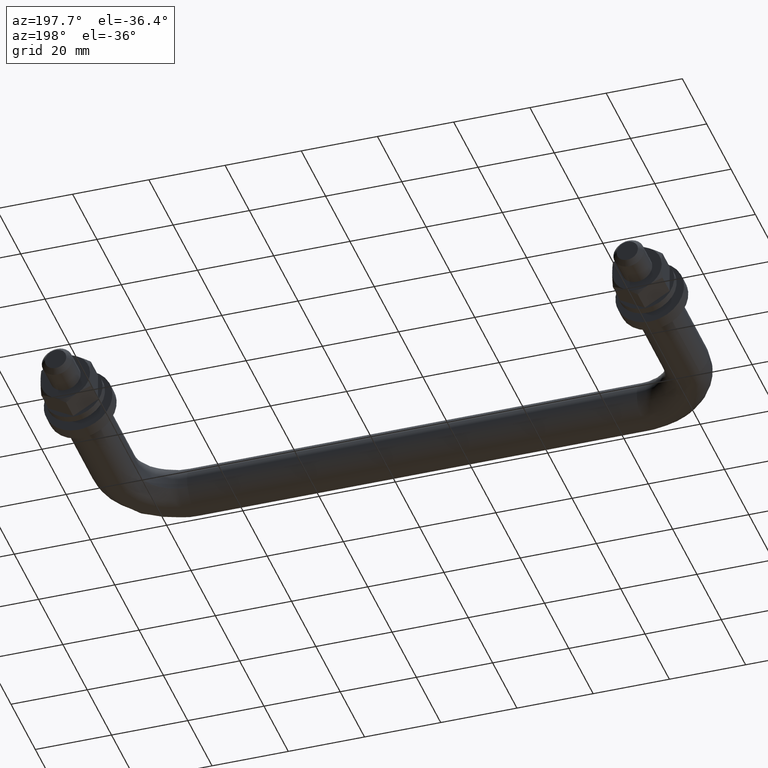
[diagram: clean part render]
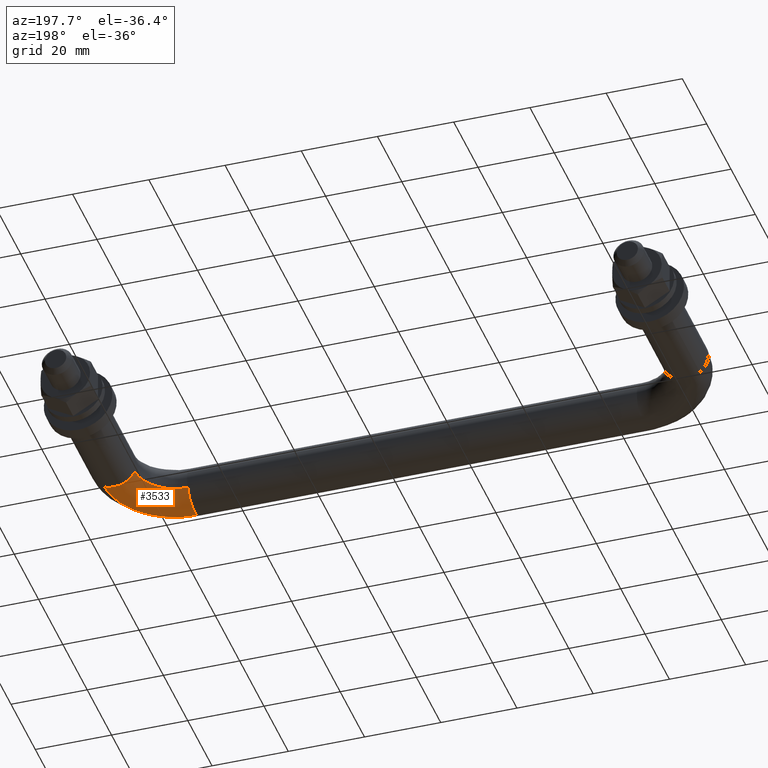
[diagram: same view with one face highlighted and labeled with its STEP entity id]
A machine part, auxiliary view. The second image highlights one B-rep face of the part: STEP entity #3533.
In plain terms, the highlighted face is a freeform B-spline surface patch.
Its self-contained STEP definition (entity closure, byte-faithful):
#2884=CARTESIAN_POINT('',(152.417438616497800,-28.000000000778101,-5.491447034750065));
#2885=VERTEX_POINT('',#2884);
#2899=CARTESIAN_POINT('',(144.508552964583200,-28.000000000472362,-2.417438614983335));
#2900=VERTEX_POINT('',#2899);
#2901=CARTESIAN_POINT('',(144.508552964583200,-28.000000000472358,-2.417438614983334));
#2902=CARTESIAN_POINT('',(146.085664093914150,-27.999999999999996,-6.0));
#2903=CARTESIAN_POINT('',(150.0,-28.0,-6.0));
#2904=CARTESIAN_POINT('',(151.262211074867390,-28.0,-6.0));
#2905=CARTESIAN_POINT('',(152.417438616497690,-28.000000000778101,-5.491447034750065));
#2913=(BOUNDED_CURVE()B_SPLINE_CURVE(2,(#2901,#2902,#2903,#2904,#2905),.UNSPECIFIED.,.F.,.U.)B_SPLINE_CURVE_WITH_KNOTS((3,2,3),(0.068414990178445,0.250000000000000,0.318414990264596),.UNSPECIFIED.)CURVE()GEOMETRIC_REPRESENTATION_ITEM()RATIONAL_B_SPLINE_CURVE((0.883563120475829,0.787259927940370,1.0,0.919846853145246,0.883563120384450))REPRESENTATION_ITEM(''));
#2914=EDGE_CURVE('',#2900,#2885,#2913,.T.);
#3053=CARTESIAN_POINT('',(133.999999999551110,-38.508552964590407,-2.417438614999606));
#3054=VERTEX_POINT('',#3053);
#3068=CARTESIAN_POINT('',(133.999999999887710,-46.417438614712417,-5.491447035536014));
#3069=VERTEX_POINT('',#3068);
#3070=CARTESIAN_POINT('',(133.999999999551050,-38.508552964590407,-2.417438614999606));
#3071=CARTESIAN_POINT('',(134.000000000000060,-40.085664093939506,-6.0));
#3072=CARTESIAN_POINT('',(134.0,-44.0,-6.0));
#3073=CARTESIAN_POINT('',(133.999999999999970,-45.262211072830290,-6.000000000000001));
#3074=CARTESIAN_POINT('',(133.999999999887760,-46.417438614712424,-5.491447035536014));
#3082=(BOUNDED_CURVE()B_SPLINE_CURVE(2,(#3070,#3071,#3072,#3073,#3074),.UNSPECIFIED.,.F.,.U.)B_SPLINE_CURVE_WITH_KNOTS((3,2,3),(0.068414990179371,0.250000000000000,0.318414990163034),.UNSPECIFIED.)CURVE()GEOMETRIC_REPRESENTATION_ITEM()RATIONAL_B_SPLINE_CURVE((0.883563120474848,0.787259927941454,1.0,0.919846853264233,0.883563120492176))REPRESENTATION_ITEM(''));
#3083=EDGE_CURVE('',#3054,#3069,#3082,.T.);
#3456=CARTESIAN_POINT('',(133.999999999551080,-38.508552964590415,-2.417438614999605));
#3457=CARTESIAN_POINT('',(135.126750548388340,-38.508552964370757,-2.417438614281976));
#3458=CARTESIAN_POINT('',(136.227887943418690,-38.269673836813510,-2.417438614281976));
#3459=CARTESIAN_POINT('',(144.508552963512730,-36.473278541801839,-2.417438614281976));
#3460=CARTESIAN_POINT('',(144.508552964583260,-28.000000000472365,-2.417438614983335));
#3468=(BOUNDED_CURVE()B_SPLINE_CURVE(2,(#3456,#3457,#3458,#3459,#3460),.UNSPECIFIED.,.F.,.U.)B_SPLINE_CURVE_WITH_KNOTS((3,2,3),(-2.295019327089030,-2.0,-0.255468157725302),.UNSPECIFIED.)CURVE()GEOMETRIC_REPRESENTATION_ITEM()RATIONAL_B_SPLINE_CURVE((0.928943411322204,0.958324109002081,1.0,0.753558793525760,0.937042118994425))REPRESENTATION_ITEM(''));
#3469=EDGE_CURVE('',#3054,#2900,#3468,.T.);
#3476=CARTESIAN_POINT('',(133.999999999887790,-46.417438614712424,-5.491447035536014));
#3477=CARTESIAN_POINT('',(135.974758954549400,-46.417438614306050,-5.491447035725503));
#3478=CARTESIAN_POINT('',(137.904627932780810,-45.998775675511730,-5.491447035725503));
#3479=CARTESIAN_POINT('',(152.417438613027120,-42.850387863648074,-5.491447035725503));
#3480=CARTESIAN_POINT('',(152.417438616497780,-28.000000000778101,-5.491447034750065));
#3488=(BOUNDED_CURVE()B_SPLINE_CURVE(2,(#3476,#3477,#3478,#3479,#3480),.UNSPECIFIED.,.F.,.U.)B_SPLINE_CURVE_WITH_KNOTS((3,2,3),(-2.295019326991359,-2.0,-0.255468157718031),.UNSPECIFIED.)CURVE()GEOMETRIC_REPRESENTATION_ITEM()RATIONAL_B_SPLINE_CURVE((0.928943411341658,0.958324109015879,1.0,0.753558793524733,0.937042118995954))REPRESENTATION_ITEM(''));
#3489=EDGE_CURVE('',#3069,#2885,#3488,.T.);
#3494=CARTESIAN_POINT('',(133.190883827649740,-38.460090003771043,-2.378330856761430));
#3495=CARTESIAN_POINT('',(134.722735859085620,-38.578582889762991,-2.378330856761430));
#3496=CARTESIAN_POINT('',(136.224238034767350,-38.252849215317831,-2.378330856761429));
#3497=CARTESIAN_POINT('',(145.144469896326970,-36.317707230026308,-2.378330856761430));
#3498=CARTESIAN_POINT('',(144.461967776733270,-27.215537058909362,-2.378330856761430));
#3499=CARTESIAN_POINT('',(133.190220940430860,-38.468659675479870,-2.397855852383587));
#3500=CARTESIAN_POINT('',(134.723327977226260,-38.587249639521090,-2.397855852383587));
#3501=CARTESIAN_POINT('',(136.226060293443310,-38.261249100196814,-2.397855852383587));
#3502=CARTESIAN_POINT('',(145.153600262160010,-36.324521704883196,-2.397855852383588));
#3503=CARTESIAN_POINT('',(144.470538986851210,-27.214894369422904,-2.397855852383588));
#3504=CARTESIAN_POINT('',(133.003117635203610,-40.887493310945729,-7.908885650007481));
#3505=CARTESIAN_POINT('',(134.890456348481510,-41.033484050515405,-7.908885650007480));
#3506=CARTESIAN_POINT('',(136.740402117446560,-40.632159535234152,-7.908885650007479));
#3507=CARTESIAN_POINT('',(147.730692679620460,-38.247942058885108,-7.908885650007481));
#3508=CARTESIAN_POINT('',(146.889806846152540,-27.033491977378233,-7.908885650007479));
#3509=CARTESIAN_POINT('',(132.578109309058790,-46.381914873320362,-5.482912168456755));
#3510=CARTESIAN_POINT('',(135.270091273862590,-46.590146938495003,-5.482912168456753));
#3511=CARTESIAN_POINT('',(137.908738280297310,-46.017722736326007,-5.482912168456753));
#3512=CARTESIAN_POINT('',(153.584601745177200,-42.617023963314224,-5.482912168456754));
#3513=CARTESIAN_POINT('',(152.385214755322350,-26.621433372064295,-5.482912168456756));
#3514=CARTESIAN_POINT('',(132.576618445372160,-46.401188457112546,-5.474402227484175));
#3515=CARTESIAN_POINT('',(135.271422974654370,-46.609638855261970,-5.474402227484175));
#3516=CARTESIAN_POINT('',(137.912836623439860,-46.036614461768963,-5.474402227484173));
#3517=CARTESIAN_POINT('',(153.605136355709960,-42.632350029074551,-5.474402227484175));
#3518=CARTESIAN_POINT('',(152.404491799067100,-26.619987934001962,-5.474402227484176));
#3526=(BOUNDED_SURFACE()B_SPLINE_SURFACE(2,2,((#3494,#3499,#3504,#3509,#3514),(#3495,#3500,#3505,#3510,#3515),(#3496,#3501,#3506,#3511,#3516),(#3497,#3502,#3507,#3512,#3517),(#3498,#3503,#3508,#3513,#3518)),.UNSPECIFIED.,.F.,.F.,.U.)B_SPLINE_SURFACE_WITH_KNOTS((3,2,3),(3,1,1,3),(0.0,5.936266058941145,33.552553725789451),(0.0,0.050208780299094,9.991334277253408,10.041042409730251),.UNSPECIFIED.)GEOMETRIC_REPRESENTATION_ITEM()RATIONAL_B_SPLINE_SURFACE(((0.912810808853102,0.911464479831563,0.643550716118729,0.911451055153874,0.912783959497724),(0.946725351907199,0.945329001421056,0.667461178459471,0.945315077963329,0.946697504991746),(1.002958580752050,1.001479290376025,0.707106781186548,1.001464539898104,1.002929079796208),(0.741354230678143,0.740260787539299,0.522670241657215,0.740249884467706,0.741332424534956),(0.962778094715385,0.961358067610485,0.678778697960426,0.961343908065613,0.962749775625641)))REPRESENTATION_ITEM('')SURFACE());
#3527=ORIENTED_EDGE('',*,*,#2914,.T.);
#3528=ORIENTED_EDGE('',*,*,#3489,.F.);
#3529=ORIENTED_EDGE('',*,*,#3083,.F.);
#3530=ORIENTED_EDGE('',*,*,#3469,.T.);
#3531=EDGE_LOOP('',(#3527,#3528,#3529,#3530));
#3532=FACE_OUTER_BOUND('',#3531,.T.);
#3533=ADVANCED_FACE('',(#3532),#3526,.T.);